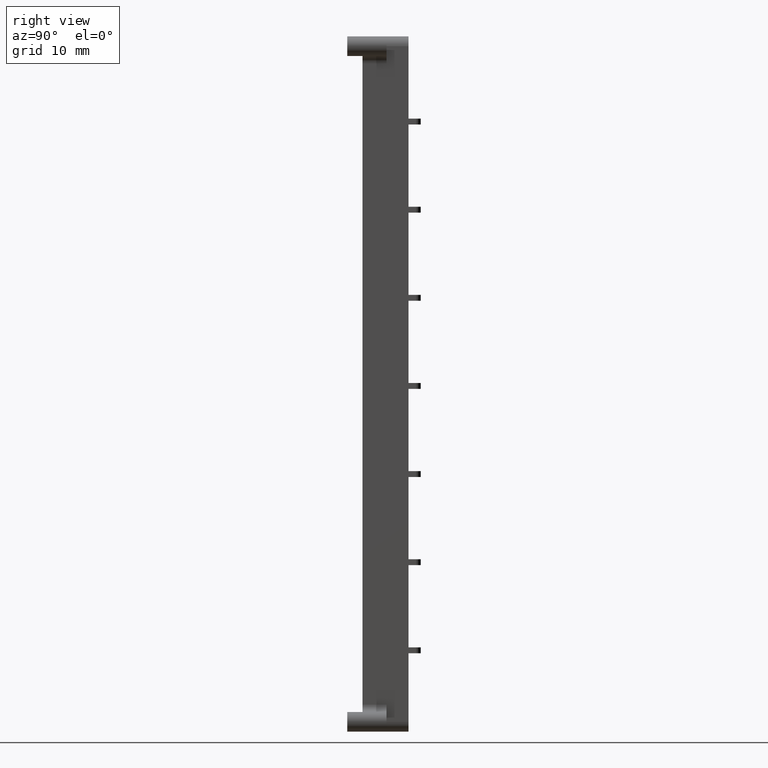
[diagram: clean part render]
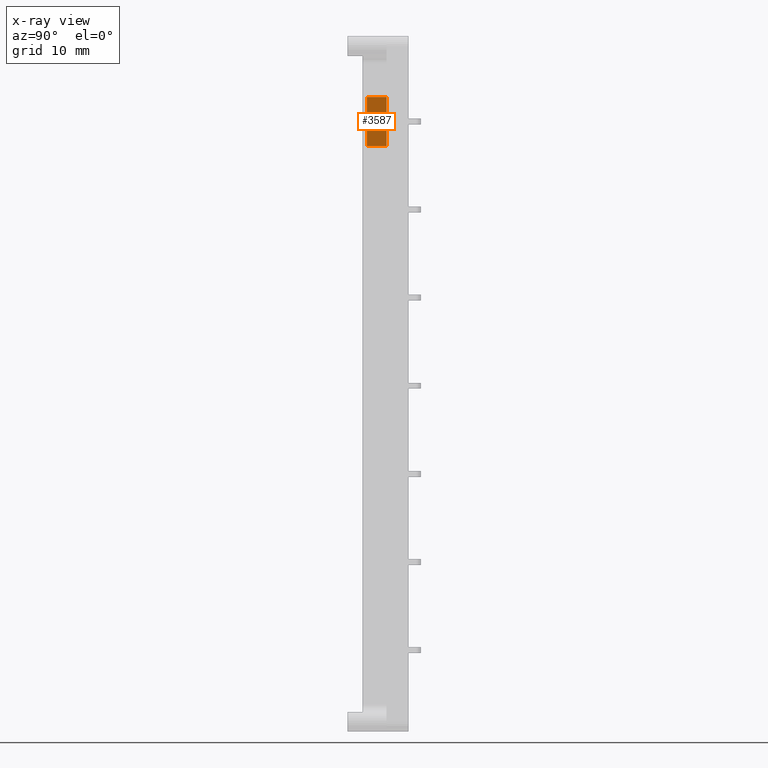
[diagram: x-ray — body ghosted, one internal face saturated and labeled with its STEP entity id]
A machine part, right view, then the same camera in x-ray: the body is ghosted and one INTERNAL B-rep face — a face not visible from any outside direction — is saturated and labeled: STEP entity #3587.
In plain terms, the highlighted planar face has unit normal (-1, -0, -0).
Its self-contained STEP definition (entity closure, byte-faithful):
#613 = AXIS2_PLACEMENT_3D ( 'NONE', #4914, #4934, #4929 ) ;
#2118 = EDGE_LOOP ( 'NONE', ( #7082, #7073, #7071, #7084, #7072, #7074 ) ) ;
#2346 = VERTEX_POINT ( 'NONE', #6948 ) ;
#2352 = VERTEX_POINT ( 'NONE', #6956 ) ;
#2369 = VERTEX_POINT ( 'NONE', #6946 ) ;
#2429 = VERTEX_POINT ( 'NONE', #7041 ) ;
#2463 = VERTEX_POINT ( 'NONE', #6993 ) ;
#2470 = VERTEX_POINT ( 'NONE', #5795 ) ;
#2625 = DIRECTION ( 'NONE',  ( -3.492165866658390800E-015, 0.0000000000000000000, 1.000000000000000000 ) ) ;
#2627 = CARTESIAN_POINT ( 'NONE',  ( 452.7252094327940300, 144.0878730676890000, 60.40000000000000600 ) ) ;
#2634 = LINE ( 'NONE', #2627, #5685 ) ;
#2713 = LINE ( 'NONE', #2718, #5693 ) ;
#2718 = CARTESIAN_POINT ( 'NONE',  ( 452.7252094327940300, 146.0878730676890000, 60.40000000000001300 ) ) ;
#2719 = DIRECTION ( 'NONE',  ( 9.546107180843072800E-035, 1.000000000000000000, -2.733577826868160200E-020 ) ) ;
#2731 = CARTESIAN_POINT ( 'NONE',  ( 452.7252094327940300, 144.0878730676890000, 60.40000000000000600 ) ) ;
#2739 = LINE ( 'NONE', #2731, #5697 ) ;
#2747 = DIRECTION ( 'NONE',  ( -3.492165866658390800E-015, 0.0000000000000000000, 1.000000000000000000 ) ) ;
#3122 = DIRECTION ( 'NONE',  ( -0.0000000000000000000, -2.733577826868160200E-020, -1.000000000000000000 ) ) ;
#3157 = CARTESIAN_POINT ( 'NONE',  ( 452.7252094327938000, 146.0878730676890000, 4.400000000000000400 ) ) ;
#3164 = LINE ( 'NONE', #3157, #5575 ) ;
#3210 = LINE ( 'NONE', #3264, #5617 ) ;
#3214 = DIRECTION ( 'NONE',  ( -3.492165866658390800E-015, 0.0000000000000000000, 1.000000000000000000 ) ) ;
#3220 = CARTESIAN_POINT ( 'NONE',  ( 452.7252094327940300, 144.0878730676890000, 60.40000000000000600 ) ) ;
#3247 = LINE ( 'NONE', #3220, #5633 ) ;
#3261 = DIRECTION ( 'NONE',  ( 2.721175277348289200E-033, -1.000000000000000000, -2.733577826868160200E-020 ) ) ;
#3264 = CARTESIAN_POINT ( 'NONE',  ( 452.7252094327940300, 146.0878730676890000, 65.40000000000000600 ) ) ;
#3587 = ADVANCED_FACE ( 'NONE', ( #4939 ), #4932, .F. ) ;
#4045 = EDGE_CURVE ( 'NONE', #2429, #2352, #3164, .T. ) ;
#4073 = EDGE_CURVE ( 'NONE', #2346, #2463, #3247, .T. ) ;
#4089 = EDGE_CURVE ( 'NONE', #2429, #2369, #3210, .T. ) ;
#4113 = EDGE_CURVE ( 'NONE', #2470, #2346, #2634, .T. ) ;
#4140 = EDGE_CURVE ( 'NONE', #2470, #2352, #2713, .T. ) ;
#4152 = EDGE_CURVE ( 'NONE', #2463, #2369, #2739, .T. ) ;
#4914 = CARTESIAN_POINT ( 'NONE',  ( 452.7252094327940300, 146.0878730676890000, 69.39999999999999100 ) ) ;
#4929 = DIRECTION ( 'NONE',  ( -3.492165866658390800E-015, 0.0000000000000000000, 1.000000000000000000 ) ) ;
#4932 = PLANE ( 'NONE',  #613 ) ;
#4934 = DIRECTION ( 'NONE',  ( -1.000000000000000000, -2.625714205539857000E-033, -3.492165866658390800E-015 ) ) ;
#4939 = FACE_OUTER_BOUND ( 'NONE', #2118, .T. ) ;
#5575 = VECTOR ( 'NONE', #3122, 1000.000000000000000 ) ;
#5617 = VECTOR ( 'NONE', #3261, 1000.000000000000000 ) ;
#5633 = VECTOR ( 'NONE', #3214, 1000.000000000000000 ) ;
#5685 = VECTOR ( 'NONE', #2625, 1000.000000000000000 ) ;
#5693 = VECTOR ( 'NONE', #2719, 1000.000000000000000 ) ;
#5697 = VECTOR ( 'NONE', #2747, 1000.000000000000000 ) ;
#5795 = CARTESIAN_POINT ( 'NONE',  ( 452.7252094327940300, 144.0878730676890000, 60.40000000000000600 ) ) ;
#6946 = CARTESIAN_POINT ( 'NONE',  ( 452.7252094327940300, 144.0878730676890000, 65.40000000000000600 ) ) ;
#6948 = CARTESIAN_POINT ( 'NONE',  ( 452.7252094327939700, 144.0878730676890000, 61.90000000000000600 ) ) ;
#6956 = CARTESIAN_POINT ( 'NONE',  ( 452.7252094327939700, 146.0878730676890000, 60.40000000000001300 ) ) ;
#6993 = CARTESIAN_POINT ( 'NONE',  ( 452.7252094327939200, 144.0878730676890000, 64.30000000000013900 ) ) ;
#7041 = CARTESIAN_POINT ( 'NONE',  ( 452.7252094327938000, 146.0878730676890000, 65.40000000000000600 ) ) ;
#7071 = ORIENTED_EDGE ( 'NONE', *, *, #4152, .F. ) ;
#7072 = ORIENTED_EDGE ( 'NONE', *, *, #4113, .F. ) ;
#7073 = ORIENTED_EDGE ( 'NONE', *, *, #4089, .T. ) ;
#7074 = ORIENTED_EDGE ( 'NONE', *, *, #4140, .T. ) ;
#7082 = ORIENTED_EDGE ( 'NONE', *, *, #4045, .F. ) ;
#7084 = ORIENTED_EDGE ( 'NONE', *, *, #4073, .F. ) ;